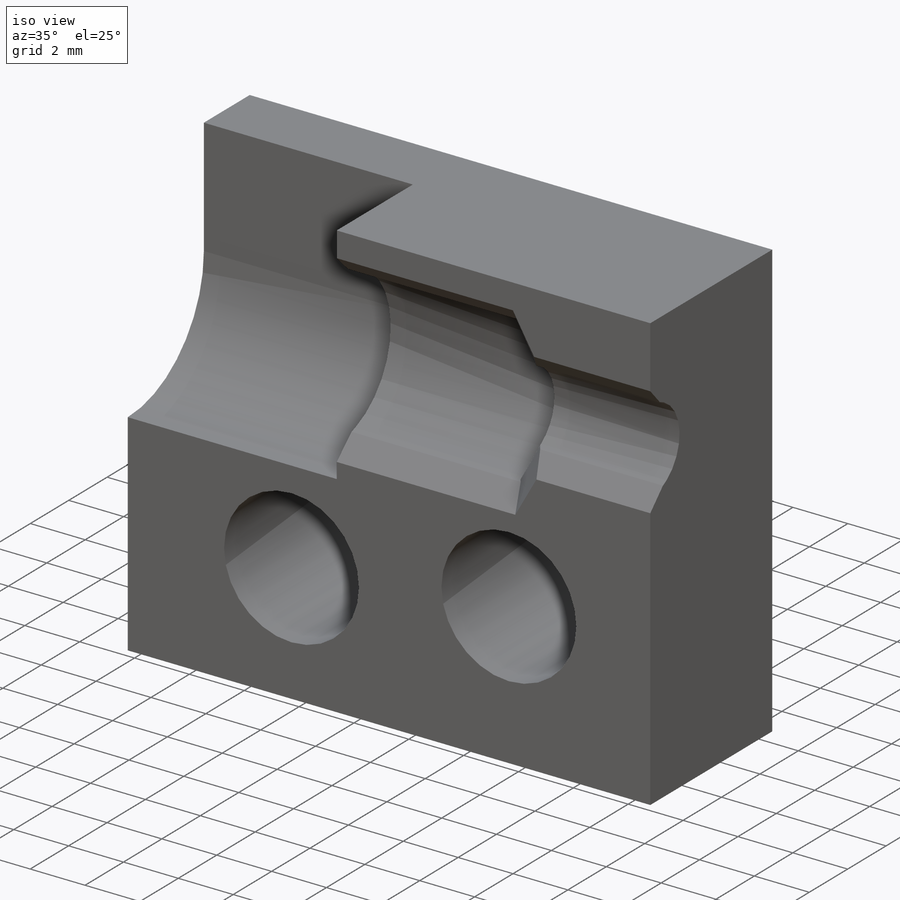
[diagram: iso view]
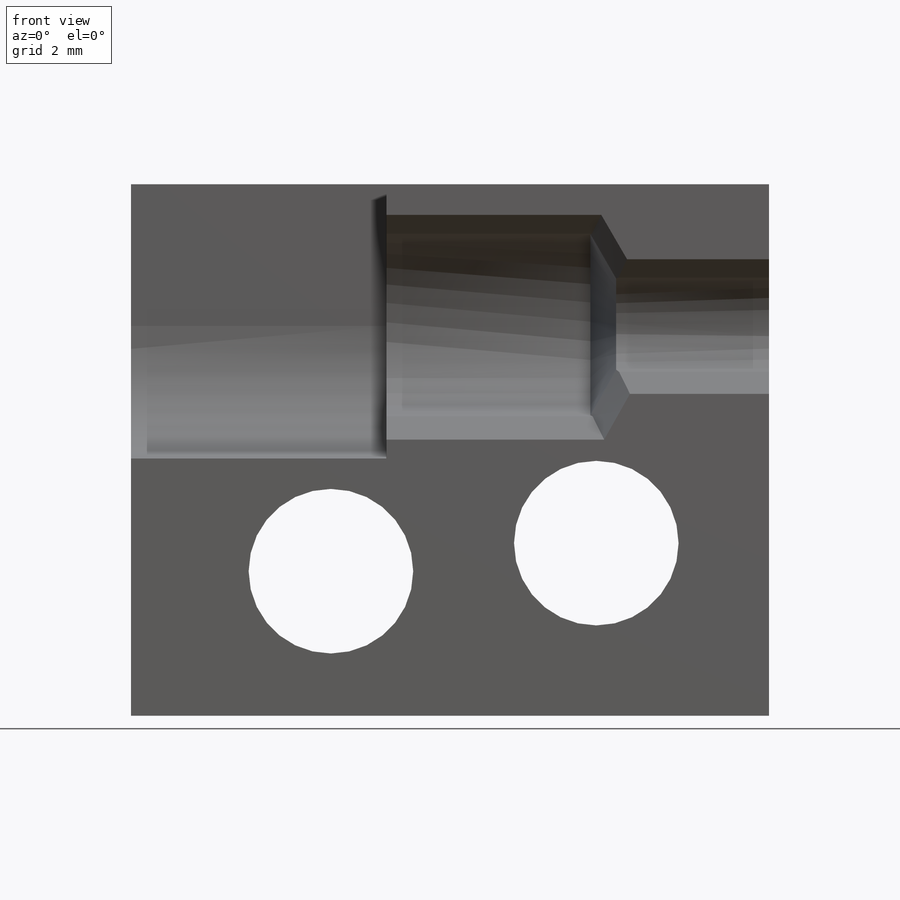
[diagram: front view]
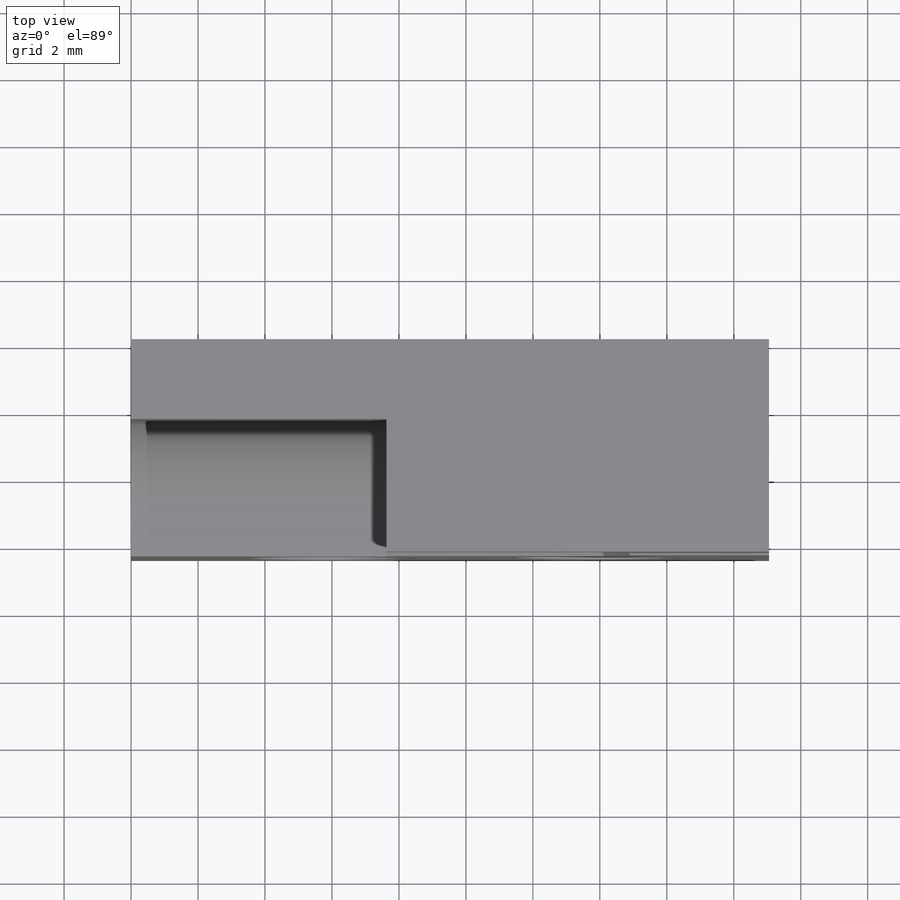
[diagram: top view]
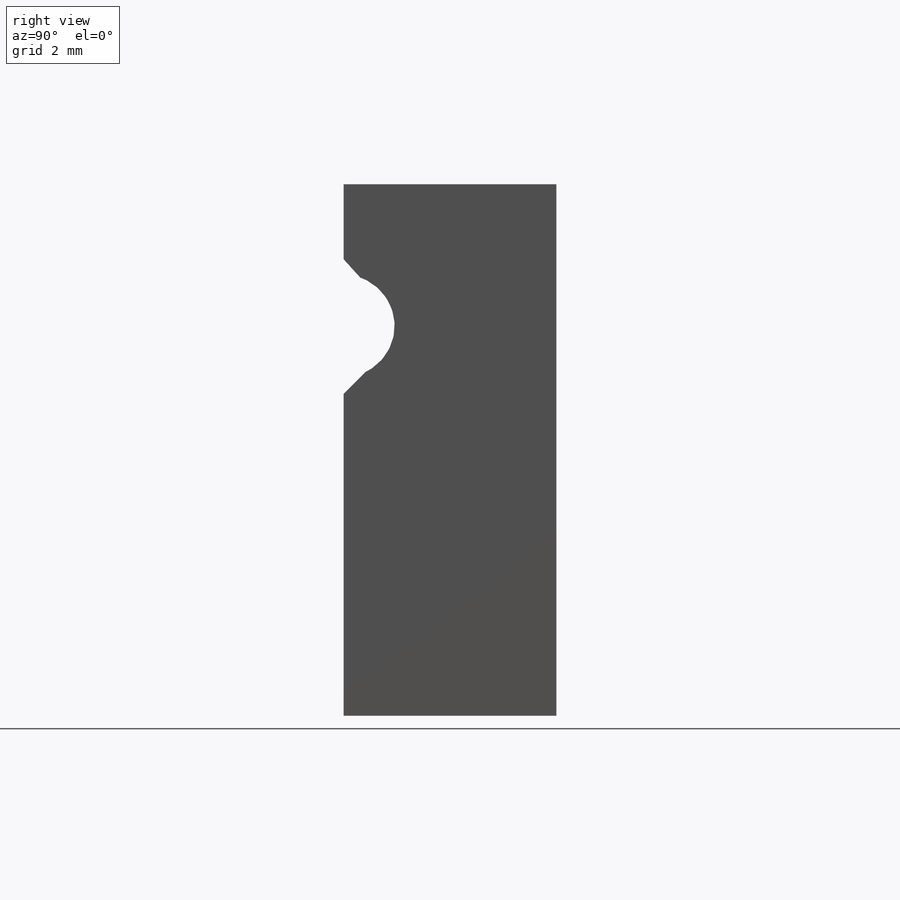
[diagram: right view]
SOLIDWORKS PART (.sldprt)
format: sldprt  version: not decoded by parser v0  size: 290,304 bytes
history: native  units: mm
features: sketch x8, hole x3, material x1, extrude x1, cut_extrude x1, chamfer x1 + 1 further entry (+13 scaffold rows collapsed)
feature tree (29):
  scaffold x13  (default folders/planes/origin — collapsed)
  material  "PEEK"
  "Origin"  ID=-1
  sketch  "Sketch1"  dims[D1=19.05mm D2=15.875mm]
  extrude  "Boss-Extrude1"  Depth=6.35mm
  hole  "#31 (0.12) Diameter Hole1"  Diameter=3.048mm Depth=19.05mm
  sketch  "Sketch3"  dims[D1=~4.22948mm]
  sketch  "Sketch2"  dims[hole-wizard template sketch: 60 standard entries collapsed; hole parameters kept: c18.Thru Hole Depth=19.05mm]
  sketch  "Sketch4"  dims[D1=7.9248mm]
  cut_extrude  "Cut-Extrude1"  Depth=7.62mm
  hole  "#2 (0.221) Diameter Hole1"  Diameter=5.6134mm Depth=6.096mm
  sketch  "Sketch6"
  sketch  "Sketch5"  dims[hole-wizard template sketch: 47 standard entries collapsed; hole parameters kept: c15.Hole Depth=6.096mm c15.D3=~14.816244mm c15.Drill Angle=118.0deg]
  chamfer  "Chamfer1"  Distance=0.508mm Angle=45deg
  hole  "#10 (0.1935) Diameter Hole1"  Diameter=4.9149mm Depth=6.450398mm
  sketch  "Sketch8"  dims[D1=5.1562mm D2=7.9248mm D3=4.318mm D4=0.8382mm]
  sketch  "Sketch7"  dims[hole-wizard template sketch: 60 standard entries collapsed; hole parameters kept: c18.Thru Hole Depth=~6.450398mm]
decode coverage: 13 of 14 modeling features carry decoded parameters; 1 rows unclassified (native names shown)
note: ~ marks probable driven/reference dimensions
note: suppression state not decoded; provenance and decode notes live in map.json
